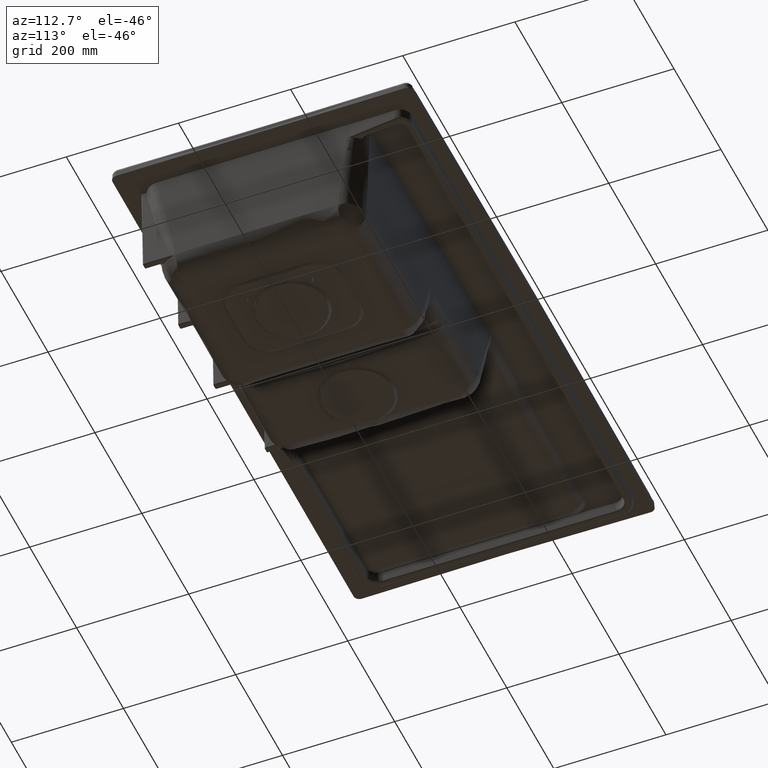
[diagram: clean part render]
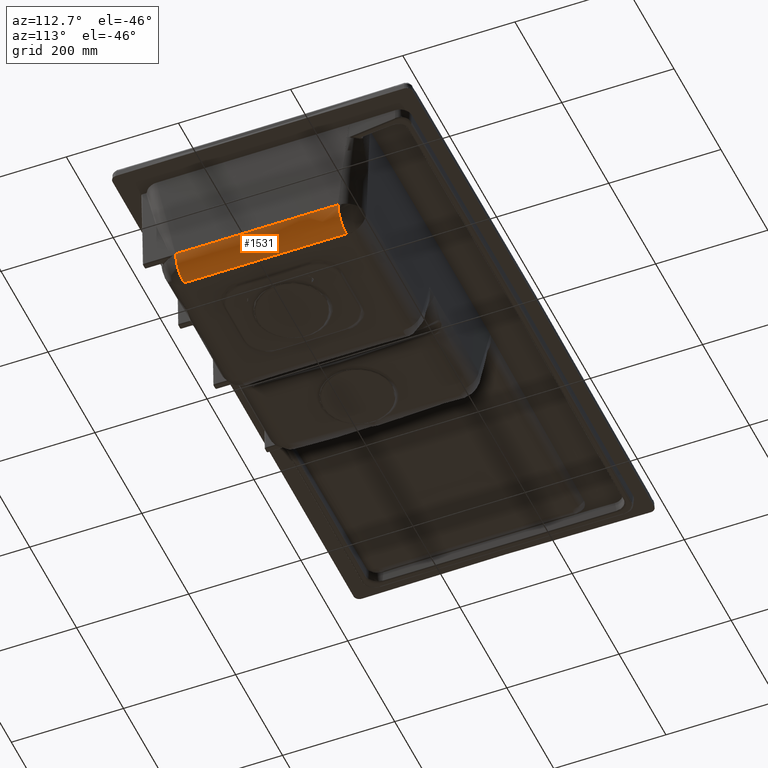
[diagram: same view with one face highlighted and labeled with its STEP entity id]
A machine part, auxiliary view. The second image highlights one B-rep face of the part: STEP entity #1531.
In plain terms, the highlighted face is a freeform B-spline surface patch.
Its self-contained STEP definition (entity closure, byte-faithful):
#176=B_SPLINE_SURFACE_WITH_KNOTS('',3,5,((#19397,#19398,#19399,#19400,#19401,
#19402,#19403,#19404,#19405,#19406,#19407,#19408,#19409,#19410),(#19411,
#19412,#19413,#19414,#19415,#19416,#19417,#19418,#19419,#19420,#19421,#19422,
#19423,#19424),(#19425,#19426,#19427,#19428,#19429,#19430,#19431,#19432,
#19433,#19434,#19435,#19436,#19437,#19438),(#19439,#19440,#19441,#19442,
#19443,#19444,#19445,#19446,#19447,#19448,#19449,#19450,#19451,#19452)),
 .UNSPECIFIED.,.F.,.F.,.F.,(4,4),(6,4,4,6),(0.,1.),(0.,0.212735855470912,
0.788765063573736,1.),.UNSPECIFIED.);
#873=B_SPLINE_CURVE_WITH_KNOTS('',5,(#17050,#17051,#17052,#17053,#17054,
#17055,#17056,#17057,#17058,#17059,#17060,#17061,#17062,#17063),
 .UNSPECIFIED.,.F.,.F.,(6,4,4,6),(0.,0.211234936426264,0.787264144529088,
1.),.UNSPECIFIED.);
#877=B_SPLINE_CURVE_WITH_KNOTS('',3,(#17128,#17129,#17130,#17131),
 .UNSPECIFIED.,.F.,.F.,(4,4),(0.,1.),.UNSPECIFIED.);
#957=B_SPLINE_CURVE_WITH_KNOTS('',3,(#19309,#19310,#19311,#19312),
 .UNSPECIFIED.,.F.,.F.,(4,4),(0.,1.),.UNSPECIFIED.);
#959=B_SPLINE_CURVE_WITH_KNOTS('',3,(#19383,#19384,#19385,#19386),
 .UNSPECIFIED.,.F.,.F.,(4,4),(0.,1.),.UNSPECIFIED.);
#960=B_SPLINE_CURVE_WITH_KNOTS('',3,(#19388,#19389,#19390,#19391),
 .UNSPECIFIED.,.F.,.F.,(4,4),(0.,1.),.UNSPECIFIED.);
#961=B_SPLINE_CURVE_WITH_KNOTS('',3,(#19393,#19394,#19395,#19396),
 .UNSPECIFIED.,.F.,.F.,(4,4),(0.,1.),.UNSPECIFIED.);
#1531=ADVANCED_FACE('',(#1931),#176,.T.);
#1931=FACE_OUTER_BOUND('',#2329,.T.);
#2329=EDGE_LOOP('',(#3507,#3508,#3509,#3510,#3511,#3512));
#3507=ORIENTED_EDGE('',*,*,#5362,.T.);
#3508=ORIENTED_EDGE('',*,*,#5473,.F.);
#3509=ORIENTED_EDGE('',*,*,#5474,.F.);
#3510=ORIENTED_EDGE('',*,*,#5475,.F.);
#3511=ORIENTED_EDGE('',*,*,#5471,.T.);
#3512=ORIENTED_EDGE('',*,*,#5356,.T.);
#4652=VERTEX_POINT('',#17049);
#4653=VERTEX_POINT('',#17064);
#4657=VERTEX_POINT('',#17127);
#4712=VERTEX_POINT('',#19313);
#4713=VERTEX_POINT('',#19387);
#4714=VERTEX_POINT('',#19392);
#5356=EDGE_CURVE('',#4653,#4652,#873,.T.);
#5362=EDGE_CURVE('',#4652,#4657,#877,.T.);
#5471=EDGE_CURVE('',#4712,#4653,#957,.T.);
#5473=EDGE_CURVE('',#4713,#4657,#959,.T.);
#5474=EDGE_CURVE('',#4714,#4713,#960,.T.);
#5475=EDGE_CURVE('',#4712,#4714,#961,.T.);
#17049=CARTESIAN_POINT('',(433.339270867291,145.816375629979,-218.149176870257));
#17050=CARTESIAN_POINT('',(432.849486260356,-143.64883945268,-218.149176870257));
#17051=CARTESIAN_POINT('',(432.870178184418,-131.41980619156,-218.149176870257));
#17052=CARTESIAN_POINT('',(432.89087010848,-119.19077293044,-218.149176870257));
#17053=CARTESIAN_POINT('',(432.911562032541,-106.96173966932,-218.149176870257));
#17054=CARTESIAN_POINT('',(432.932253956603,-94.7327064081997,-218.149176870257));
#17055=CARTESIAN_POINT('',(433.00937192852,-49.1555894236042,-218.149176870257));
#17056=CARTESIAN_POINT('',(433.065797976374,-15.8075057001287,-218.149176870257));
#17057=CARTESIAN_POINT('',(433.122224024229,17.5405780233468,-218.149176870257));
#17058=CARTESIAN_POINT('',(433.178650072084,50.8886617468223,-218.149176870257));
#17059=CARTESIAN_POINT('',(433.255915069409,96.552671502234,-218.149176870257));
#17060=CARTESIAN_POINT('',(433.27675401888,108.86859753417,-218.149176870257));
#17061=CARTESIAN_POINT('',(433.29759296835,121.184523566106,-218.149176870257));
#17062=CARTESIAN_POINT('',(433.318431917821,133.500449598043,-218.149176870257));
#17063=CARTESIAN_POINT('',(433.339270867292,145.816375629979,-218.149176870257));
#17064=CARTESIAN_POINT('',(432.849486260356,-143.64883945268,-218.149176870257));
#17127=CARTESIAN_POINT('',(467.676107830753,145.273119394072,-182.218300672252));
#17128=CARTESIAN_POINT('',(433.339270867292,145.816375629979,-218.149176870257));
#17129=CARTESIAN_POINT('',(451.846082693285,145.523571704451,-218.149176870257));
#17130=CARTESIAN_POINT('',(465.659304282863,145.30502701163,-201.709914630161));
#17131=CARTESIAN_POINT('',(467.676119479083,145.273118144123,-182.218306067041));
#19309=CARTESIAN_POINT('',(467.172856271103,-144.331432649819,-182.218243111181));
#19310=CARTESIAN_POINT('',(465.156311310757,-144.291329365345,-201.708227056099));
#19311=CARTESIAN_POINT('',(451.351113193198,-144.016783645701,-218.149176870257));
#19312=CARTESIAN_POINT('',(432.849486260356,-143.64883945268,-218.149176870257));
#19313=CARTESIAN_POINT('',(467.172853231814,-144.331442455577,-182.218243499352));
#19383=CARTESIAN_POINT('',(467.575340238298,83.6640938170139,-182.192616194371));
#19384=CARTESIAN_POINT('',(467.609504488653,104.20043280685,-182.198868076585));
#19385=CARTESIAN_POINT('',(467.643101497849,124.736773953468,-182.207432205345));
#19386=CARTESIAN_POINT('',(467.676119602806,145.273118142166,-182.218304871323));
#19387=CARTESIAN_POINT('',(467.575339690535,83.6637903261867,-182.192616507207));
#19388=CARTESIAN_POINT('',(467.285413733379,-83.1565063497802,-182.192712306727));
#19389=CARTESIAN_POINT('',(467.386190228556,-27.5498462571016,-182.175719913187));
#19390=CARTESIAN_POINT('',(467.482831943277,28.0568124027772,-182.175687780769));
#19391=CARTESIAN_POINT('',(467.575339228519,83.663486833244,-182.192616009587));
#19392=CARTESIAN_POINT('',(467.285413151452,-83.1568038115437,-182.192712802689));
#19393=CARTESIAN_POINT('',(467.172856394819,-144.33143265228,-182.218241915465));
#19394=CARTESIAN_POINT('',(467.210942088447,-123.939988121885,-182.207454811097));
#19395=CARTESIAN_POINT('',(467.248457031663,-103.548544605409,-182.198943790583));
#19396=CARTESIAN_POINT('',(467.285412655188,-83.1571012758694,-182.192712488527));
#19397=CARTESIAN_POINT('',(433.339270867292,145.816375629979,-218.149176870257));
#19398=CARTESIAN_POINT('',(433.318431917821,133.500449598043,-218.149176870257));
#19399=CARTESIAN_POINT('',(433.29759296835,121.184523566106,-218.149176870257));
#19400=CARTESIAN_POINT('',(433.27675401888,108.86859753417,-218.149176870257));
#19401=CARTESIAN_POINT('',(433.255915069409,96.552671502234,-218.149176870257));
#19402=CARTESIAN_POINT('',(433.178650072084,50.8886617468223,-218.149176870257));
#19403=CARTESIAN_POINT('',(433.122224024229,17.5405780233468,-218.149176870257));
#19404=CARTESIAN_POINT('',(433.065797976374,-15.8075057001287,-218.149176870257));
#19405=CARTESIAN_POINT('',(433.00937192852,-49.1555894236042,-218.149176870257));
#19406=CARTESIAN_POINT('',(432.932253956603,-94.7327064081997,-218.149176870257));
#19407=CARTESIAN_POINT('',(432.911562032541,-106.96173966932,-218.149176870257));
#19408=CARTESIAN_POINT('',(432.89087010848,-119.19077293044,-218.149176870257));
#19409=CARTESIAN_POINT('',(432.870178184418,-131.41980619156,-218.149176870257));
#19410=CARTESIAN_POINT('',(432.849486260356,-143.64883945268,-218.149176870257));
#19411=CARTESIAN_POINT('',(451.846082693285,145.523571704451,-218.149176870257));
#19412=CARTESIAN_POINT('',(451.825556995559,133.204464619727,-218.149176870257));
#19413=CARTESIAN_POINT('',(451.804973725915,120.885357500806,-218.149176870257));
#19414=CARTESIAN_POINT('',(451.784333206148,108.566291594007,-218.149176870257));
#19415=CARTESIAN_POINT('',(451.763635380931,96.2470641185646,-218.149176870257));
#19416=CARTESIAN_POINT('',(451.686683846069,50.5711401029963,-218.149176870257));
#19417=CARTESIAN_POINT('',(451.63007340571,17.2144437089691,-218.149176870257));
#19418=CARTESIAN_POINT('',(451.573048029185,-16.1422077733902,-218.149176870257));
#19419=CARTESIAN_POINT('',(451.515607334485,-49.4990216685366,-218.149176870257));
#19420=CARTESIAN_POINT('',(451.436537614649,-95.0880240688587,-218.149176870257));
#19421=CARTESIAN_POINT('',(451.415266132836,-107.320213672238,-218.149176870257));
#19422=CARTESIAN_POINT('',(451.393938414939,-119.552403374147,-218.149176870257));
#19423=CARTESIAN_POINT('',(451.372554183985,-131.784593620298,-218.149176870257));
#19424=CARTESIAN_POINT('',(451.351113193198,-144.016783645701,-218.149176870257));
#19425=CARTESIAN_POINT('',(465.659304282863,145.30502701163,-201.709914630161));
#19426=CARTESIAN_POINT('',(465.647783522263,132.98353854331,-201.70640740549));
#19427=CARTESIAN_POINT('',(465.635212232603,120.662051437145,-201.703260477441));
#19428=CARTESIAN_POINT('',(465.621590129024,108.340648210971,-201.700475984851));
#19429=CARTESIAN_POINT('',(465.606916609313,96.0189233292213,-201.698055547524));
#19430=CARTESIAN_POINT('',(465.548615823511,50.3340717908925,-201.690436533667));
#19431=CARTESIAN_POINT('',(465.498342417621,16.9709549715523,-201.687553818063));
#19432=CARTESIAN_POINT('',(465.44035430996,-16.3920604356712,-201.687373377739));
#19433=CARTESIAN_POINT('',(465.374650666735,-49.7553885049178,-201.689895276779));
#19434=CARTESIAN_POINT('',(465.274334969046,-95.3532301687466,-201.697006523618));
#19435=CARTESIAN_POINT('',(465.246382998317,-107.587757060143,-201.699274909318));
#19436=CARTESIAN_POINT('',(465.217394925637,-119.822282389749,-201.701902314334));
#19437=CARTESIAN_POINT('',(465.187370870276,-132.056807013849,-201.704887050358));
#19438=CARTESIAN_POINT('',(465.156311310757,-144.291329365345,-201.708227056099));
#19439=CARTESIAN_POINT('',(467.676119479083,145.273118144123,-182.218306067041));
#19440=CARTESIAN_POINT('',(467.65630861611,132.951311630926,-182.211782467454));
#19441=CARTESIAN_POINT('',(467.636324080257,120.629505030292,-182.205951428503));
#19442=CARTESIAN_POINT('',(467.616167243654,108.307822075518,-182.200813359491));
#19443=CARTESIAN_POINT('',(467.595838260878,95.9856544194507,-182.196368445503));
#19444=CARTESIAN_POINT('',(467.519834733654,50.2994821770863,-182.182460268013));
#19445=CARTESIAN_POINT('',(467.463090026651,16.9354780333251,-182.177391437809));
#19446=CARTESIAN_POINT('',(467.405105193045,-16.428391448248,-182.177410670879));
#19447=CARTESIAN_POINT('',(467.345879075491,-49.7927482623126,-182.182518139039));
#19448=CARTESIAN_POINT('',(467.263239157357,-95.3919672712179,-182.196452465477));
#19449=CARTESIAN_POINT('',(467.240897988366,-107.62683275583,-182.200875162074));
#19450=CARTESIAN_POINT('',(467.218387880173,-119.861698532374,-182.205981410574));
#19451=CARTESIAN_POINT('',(467.195707687279,-132.096565931604,-182.21177084856));
#19452=CARTESIAN_POINT('',(467.172856271103,-144.331432649819,-182.218243111181));